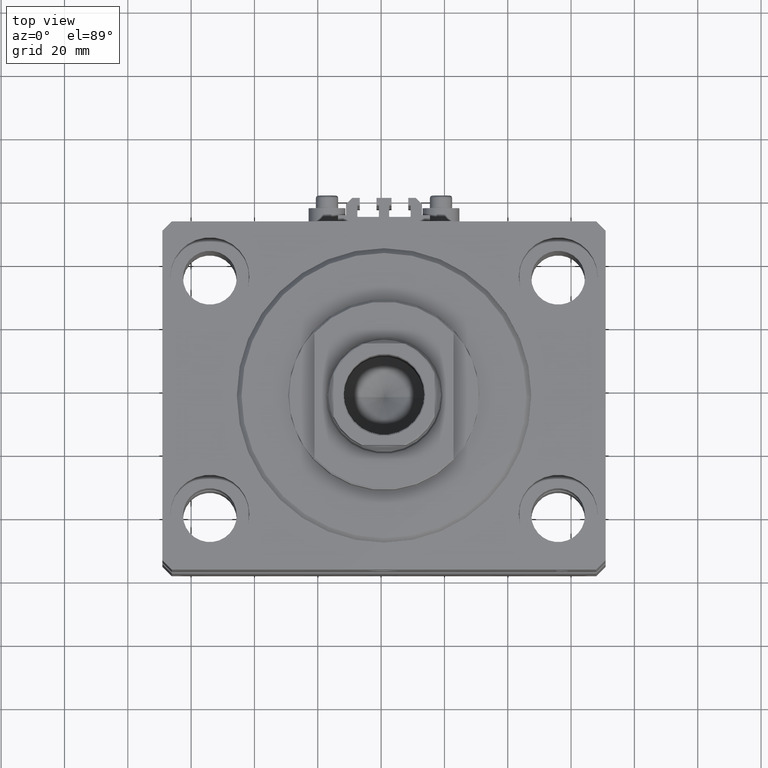
[diagram: clean part render]
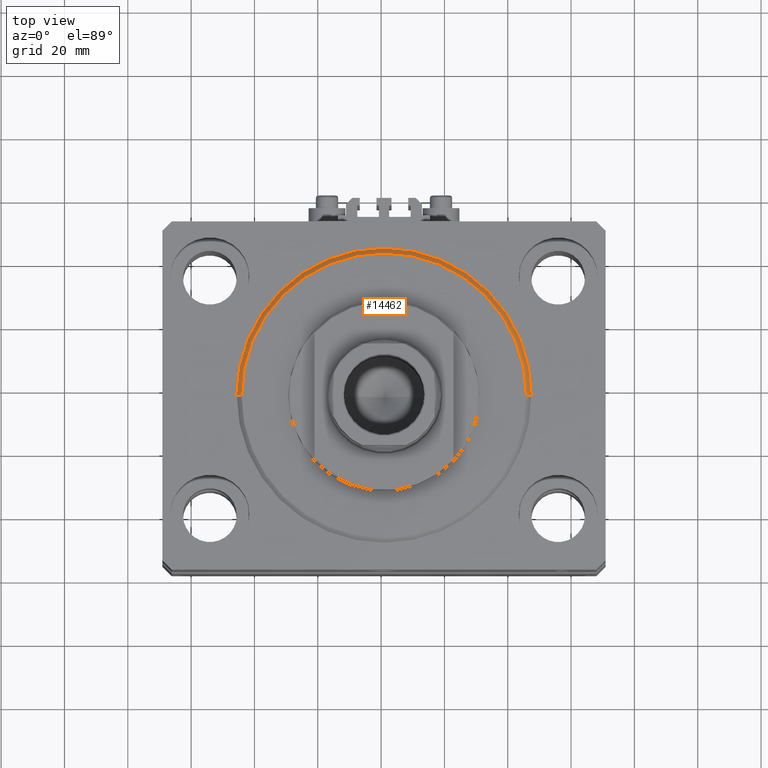
[diagram: same view with one face highlighted and labeled with its STEP entity id]
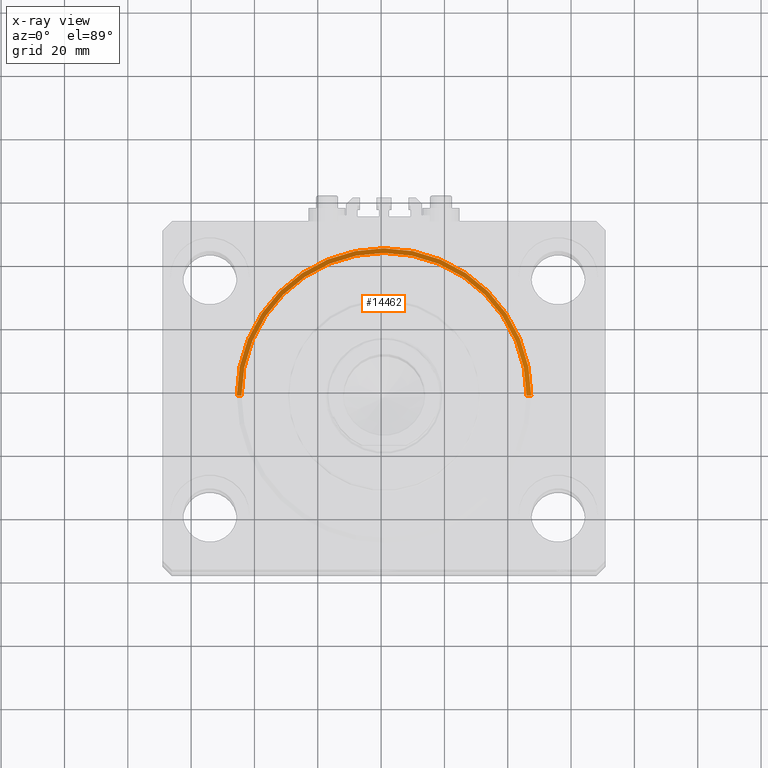
[diagram: x-ray of the same camera — body ghosted, the highlighted face saturated]
A machine part, top view. The second image highlights one B-rep face of the part: STEP entity #14462.
The next image is the same camera in x-ray: the body ghosted, the highlighted face saturated — about 0% of this face is hidden behind the body in this view.
In plain terms, the highlighted conical surface has half-angle 45 deg.
Its self-contained STEP definition (entity closure, byte-faithful):
#91 = AXIS2_PLACEMENT_3D ( 'NONE', #36595, #32163, #6750 ) ;
#1686 = CONICAL_SURFACE ( 'NONE', #91, 46.50000000000000000, 0.7853981633974552734 ) ;
#4159 = EDGE_CURVE ( 'NONE', #5299, #37673, #24294, .T. ) ;
#5299 = VERTEX_POINT ( 'NONE', #34015 ) ;
#5345 = CARTESIAN_POINT ( 'NONE',  ( 45.00000000000000000, 0.000000000000000000, 0.000000000000000000 ) ) ;
#5344 = CIRCLE ( 'NONE', #32897, 45.00000000000000000 ) ;
#5399 = AXIS2_PLACEMENT_3D ( 'NONE', #10898, #45195, #41480 ) ;
#5929 = CARTESIAN_POINT ( 'NONE',  ( 46.50000000000000000, 0.000000000000000000, 1.499999999999980460 ) ) ;
#6750 = DIRECTION ( 'NONE',  ( 1.000000000000000000, 0.000000000000000000, 0.000000000000000000 ) ) ;
#7726 = ORIENTED_EDGE ( 'NONE', *, *, #36721, .F. ) ;
#8231 = DIRECTION ( 'NONE',  ( -0.7071067811865524577, 8.659560562354993255E-17, 0.7071067811865425767 ) ) ;
#9981 = CARTESIAN_POINT ( 'NONE',  ( -45.00000000000000000, 5.602759106099140917E-15, 0.000000000000000000 ) ) ;
#10851 = CARTESIAN_POINT ( 'NONE',  ( 0.000000000000000000, 0.000000000000000000, 0.000000000000000000 ) ) ;
#10898 = CARTESIAN_POINT ( 'NONE',  ( 0.000000000000000000, 0.000000000000000000, 1.499999999999980460 ) ) ;
#12204 = ORIENTED_EDGE ( 'NONE', *, *, #4159, .F. ) ;
#13095 = VERTEX_POINT ( 'NONE', #9981 ) ;
#14387 = LINE ( 'NONE', #29445, #20773 ) ;
#14462 = ADVANCED_FACE ( 'NONE', ( #32894 ), #1686, .T. ) ;
#19888 = ORIENTED_EDGE ( 'NONE', *, *, #45640, .T. ) ;
#20773 = VECTOR ( 'NONE', #8231, 1000.000000000000114 ) ;
#23557 = EDGE_LOOP ( 'NONE', ( #39894, #19888, #12204, #7726 ) ) ;
#24294 = CIRCLE ( 'NONE', #5399, 46.50000000000000000 ) ;
#26271 = CARTESIAN_POINT ( 'NONE',  ( -46.50000000000000000, 0.000000000000000000, 1.499999999999980460 ) ) ;
#26642 = VERTEX_POINT ( 'NONE', #5345 ) ;
#29328 = EDGE_CURVE ( 'NONE', #13095, #26642, #5344, .T. ) ;
#29445 = CARTESIAN_POINT ( 'NONE',  ( -46.50000000000000000, 5.694607616035192278E-15, 1.499999999999980460 ) ) ;
#31604 = VECTOR ( 'NONE', #47109, 1000.000000000000114 ) ;
#32163 = DIRECTION ( 'NONE',  ( -0.000000000000000000, -0.000000000000000000, 1.000000000000000000 ) ) ;
#32816 = DIRECTION ( 'NONE',  ( 1.000000000000000000, 0.000000000000000000, 0.000000000000000000 ) ) ;
#32894 = FACE_OUTER_BOUND ( 'NONE', #23557, .T. ) ;
#32897 = AXIS2_PLACEMENT_3D ( 'NONE', #10851, #33060, #32816 ) ;
#33060 = DIRECTION ( 'NONE',  ( -0.000000000000000000, -0.000000000000000000, -1.000000000000000000 ) ) ;
#34015 = CARTESIAN_POINT ( 'NONE',  ( 46.50000000000000000, 5.694607616035192278E-15, 1.499999999999980460 ) ) ;
#36595 = CARTESIAN_POINT ( 'NONE',  ( 0.000000000000000000, 0.000000000000000000, 1.499999999999980460 ) ) ;
#36721 = EDGE_CURVE ( 'NONE', #26642, #5299, #42936, .T. ) ;
#37673 = VERTEX_POINT ( 'NONE', #26271 ) ;
#39894 = ORIENTED_EDGE ( 'NONE', *, *, #29328, .F. ) ;
#41480 = DIRECTION ( 'NONE',  ( 1.000000000000000000, 0.000000000000000000, 0.000000000000000000 ) ) ;
#42936 = LINE ( 'NONE', #5929, #31604 ) ;
#45195 = DIRECTION ( 'NONE',  ( -0.000000000000000000, -0.000000000000000000, 1.000000000000000000 ) ) ;
#45640 = EDGE_CURVE ( 'NONE', #13095, #37673, #14387, .T. ) ;
#47109 = DIRECTION ( 'NONE',  ( 0.7071067811865524577, 0.000000000000000000, 0.7071067811865425767 ) ) ;